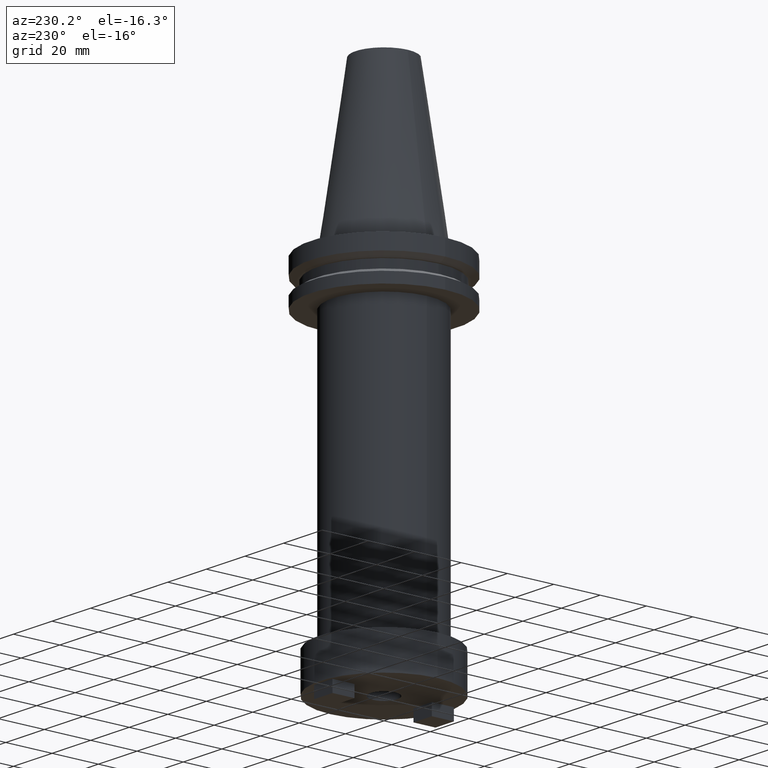
[diagram: clean part render]
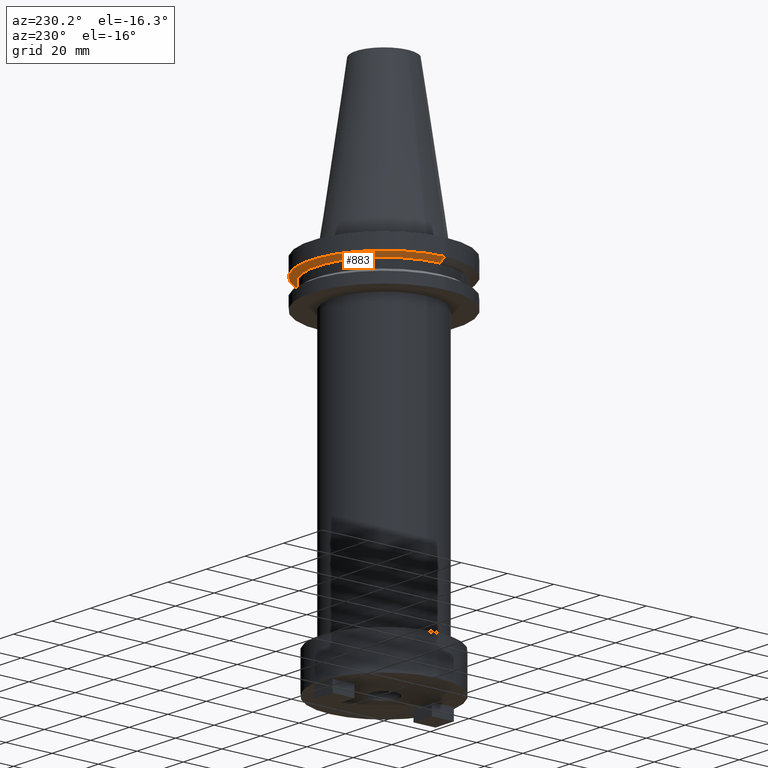
[diagram: same view with one face highlighted and labeled with its STEP entity id]
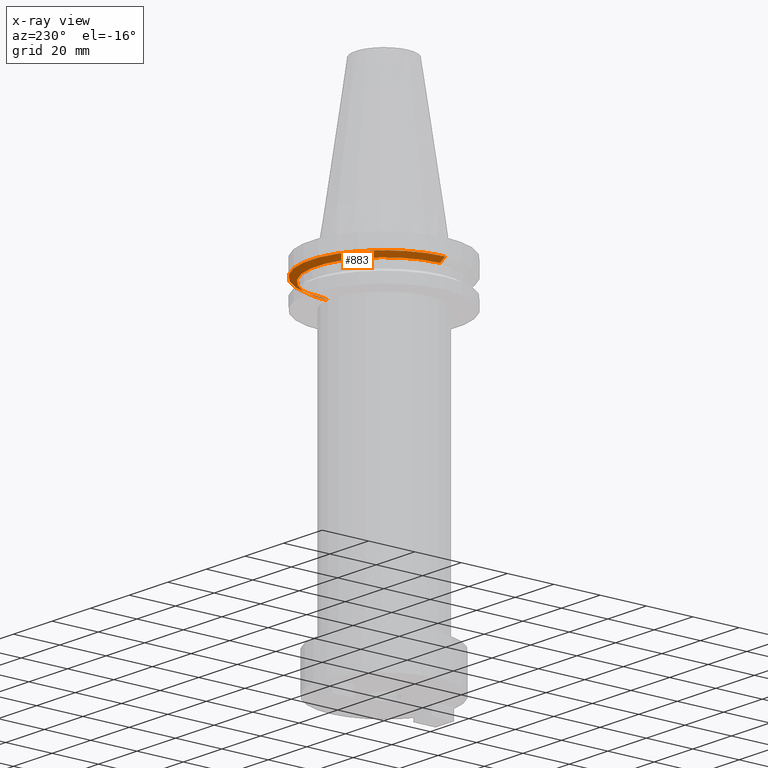
[diagram: x-ray of the same camera — body ghosted, the highlighted face saturated]
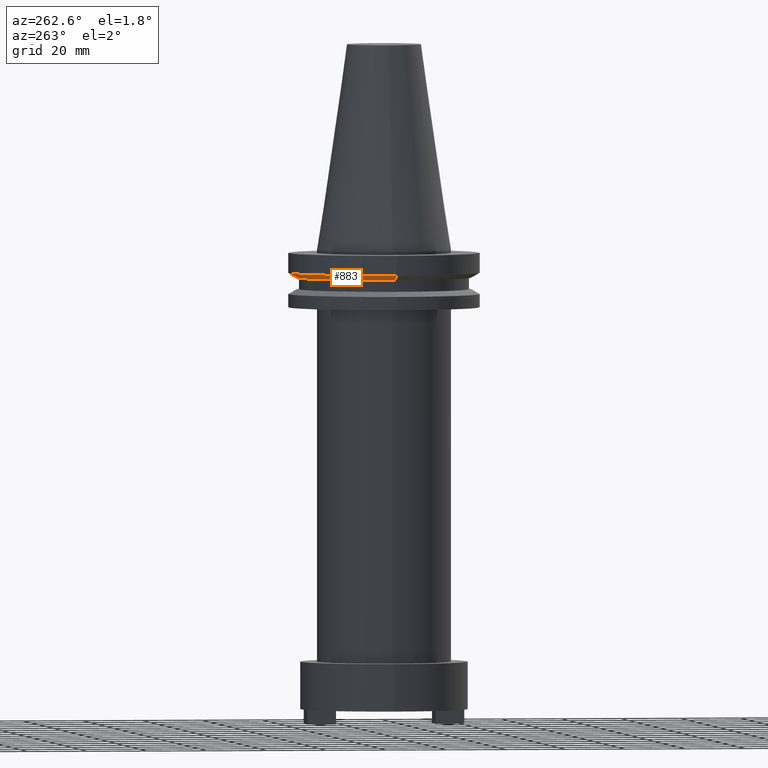
[diagram: same view with one face highlighted and labeled with its STEP entity id]
A machine part, auxiliary view. The second image highlights one B-rep face of the part: STEP entity #883.
The next image is the same camera in x-ray: the body ghosted, the highlighted face saturated — about 2% of this face is hidden behind the body in this view.
A second angle (auxiliary view) of the same face is appended — the face is thin or edge-on in the first view.
In plain terms, the highlighted conical surface has half-angle 60 deg.
Its self-contained STEP definition (entity closure, byte-faithful):
#103 = EDGE_CURVE ( 'NONE', #843, #279, #736, .T. ) ;
#108 = AXIS2_PLACEMENT_3D ( 'NONE', #763, #322, #662 ) ;
#143 = DIRECTION ( 'NONE',  ( -0.000000000000000000, -0.000000000000000000, 1.000000000000000000 ) ) ;
#145 = ORIENTED_EDGE ( 'NONE', *, *, #103, .T. ) ;
#171 = VERTEX_POINT ( 'NONE', #990 ) ;
#228 = FACE_OUTER_BOUND ( 'NONE', #887, .T. ) ;
#242 = EDGE_CURVE ( 'NONE', #171, #808, #994, .T. ) ;
#244 = LINE ( 'NONE', #425, #510 ) ;
#246 = AXIS2_PLACEMENT_3D ( 'NONE', #547, #143, #807 ) ;
#253 = EDGE_CURVE ( 'NONE', #843, #171, #270, .T. ) ;
#262 = DIRECTION ( 'NONE',  ( -0.8660254037844389297, 1.060575238724907285E-16, 0.4999999999999995004 ) ) ;
#270 = LINE ( 'NONE', #551, #798 ) ;
#279 = VERTEX_POINT ( 'NONE', #529 ) ;
#322 = DIRECTION ( 'NONE',  ( -0.000000000000000000, -0.000000000000000000, 1.000000000000000000 ) ) ;
#352 = DIRECTION ( 'NONE',  ( 0.8660254037844389297, 0.000000000000000000, 0.4999999999999995004 ) ) ;
#411 = AXIS2_PLACEMENT_3D ( 'NONE', #1031, #1048, #793 ) ;
#425 = CARTESIAN_POINT ( 'NONE',  ( -28.97919780457007732, 3.548928183322474856E-15, -9.205000000000005400 ) ) ;
#482 = CARTESIAN_POINT ( 'NONE',  ( 28.97919780457007732, 0.000000000000000000, -9.205000000000005400 ) ) ;
#510 = VECTOR ( 'NONE', #262, 1000.000000000000000 ) ;
#520 = EDGE_CURVE ( 'NONE', #279, #808, #244, .T. ) ;
#529 = CARTESIAN_POINT ( 'NONE',  ( -28.97919780457007732, 3.718590885307660666E-15, -9.205000000000005400 ) ) ;
#539 = ORIENTED_EDGE ( 'NONE', *, *, #253, .F. ) ;
#547 = CARTESIAN_POINT ( 'NONE',  ( 0.000000000000000000, 0.000000000000000000, -9.205000000000005400 ) ) ;
#551 = CARTESIAN_POINT ( 'NONE',  ( 28.97919780457007732, 0.000000000000000000, -9.205000000000005400 ) ) ;
#571 = CARTESIAN_POINT ( 'NONE',  ( -31.75000000000000000, 3.888253587292846476E-15, -7.605276606597335842 ) ) ;
#662 = DIRECTION ( 'NONE',  ( 1.000000000000000000, 0.000000000000000000, 0.000000000000000000 ) ) ;
#736 = CIRCLE ( 'NONE', #108, 28.97919780457007732 ) ;
#763 = CARTESIAN_POINT ( 'NONE',  ( 0.000000000000000000, 0.000000000000000000, -9.205000000000005400 ) ) ;
#793 = DIRECTION ( 'NONE',  ( 1.000000000000000000, 0.000000000000000000, 0.000000000000000000 ) ) ;
#798 = VECTOR ( 'NONE', #352, 1000.000000000000000 ) ;
#807 = DIRECTION ( 'NONE',  ( 1.000000000000000000, 0.000000000000000000, 0.000000000000000000 ) ) ;
#808 = VERTEX_POINT ( 'NONE', #571 ) ;
#843 = VERTEX_POINT ( 'NONE', #482 ) ;
#855 = ORIENTED_EDGE ( 'NONE', *, *, #242, .F. ) ;
#883 = ADVANCED_FACE ( 'NONE', ( #228 ), #1016, .T. ) ;
#887 = EDGE_LOOP ( 'NONE', ( #145, #902, #855, #539 ) ) ;
#902 = ORIENTED_EDGE ( 'NONE', *, *, #520, .T. ) ;
#990 = CARTESIAN_POINT ( 'NONE',  ( 31.75000000000000000, 0.000000000000000000, -7.605276606597335842 ) ) ;
#994 = CIRCLE ( 'NONE', #411, 31.75000000000000000 ) ;
#1016 = CONICAL_SURFACE ( 'NONE', #246, 28.97919780457007732, 1.047197551196598297 ) ;
#1031 = CARTESIAN_POINT ( 'NONE',  ( 0.000000000000000000, 0.000000000000000000, -7.605276606597335842 ) ) ;
#1048 = DIRECTION ( 'NONE',  ( -0.000000000000000000, -0.000000000000000000, 1.000000000000000000 ) ) ;